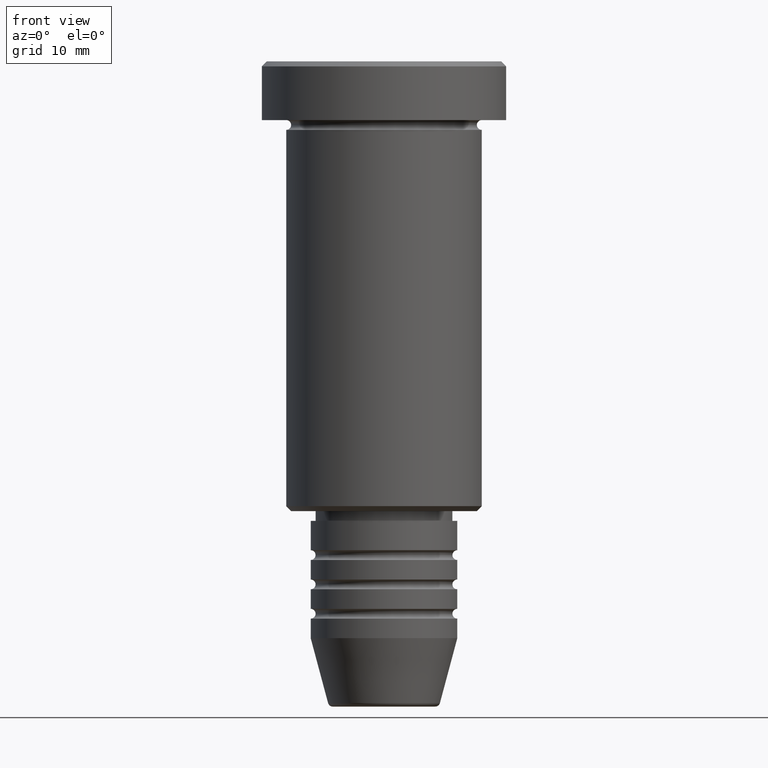
[diagram: clean part render]
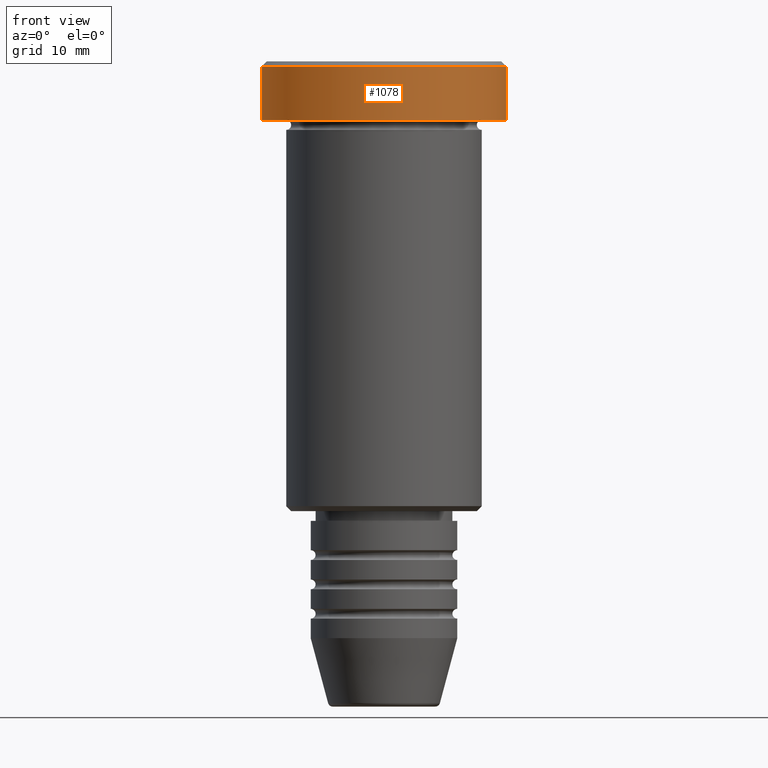
[diagram: same view with one face highlighted and labeled with its STEP entity id]
A machine part, front view. The second image highlights one B-rep face of the part: STEP entity #1078.
In plain terms, the highlighted cylindrical surface (partial cylindrical patch) has radius 12.5 mm, axis along (-0, -0, 1).
Its self-contained STEP definition (entity closure, byte-faithful):
#18 = EDGE_CURVE ( 'NONE', #989, #1174, #814, .T. ) ;
#20 = CARTESIAN_POINT ( 'NONE',  ( 0.000000000000000000, 0.000000000000000000, -0.4999999999999917843 ) ) ;
#25 = LINE ( 'NONE', #655, #605 ) ;
#63 = CIRCLE ( 'NONE', #537, 12.50000000000000000 ) ;
#107 = ORIENTED_EDGE ( 'NONE', *, *, #924, .T. ) ;
#119 = DIRECTION ( 'NONE',  ( -0.000000000000000000, -0.000000000000000000, 1.000000000000000000 ) ) ;
#147 = DIRECTION ( 'NONE',  ( -0.000000000000000000, -0.000000000000000000, 1.000000000000000000 ) ) ;
#151 = EDGE_CURVE ( 'NONE', #1100, #277, #25, .T. ) ;
#195 = DIRECTION ( 'NONE',  ( 1.000000000000000000, 0.000000000000000000, 0.000000000000000000 ) ) ;
#215 = CARTESIAN_POINT ( 'NONE',  ( -12.50000000000000000, 1.530808498934191521E-15, -0.4999999999999917843 ) ) ;
#272 = AXIS2_PLACEMENT_3D ( 'NONE', #782, #147, #312 ) ;
#277 = VERTEX_POINT ( 'NONE', #1048 ) ;
#312 = DIRECTION ( 'NONE',  ( 1.000000000000000000, 0.000000000000000000, 0.000000000000000000 ) ) ;
#374 = DIRECTION ( 'NONE',  ( 1.000000000000000000, 0.000000000000000000, 0.000000000000000000 ) ) ;
#377 = CIRCLE ( 'NONE', #272, 12.50000000000000000 ) ;
#415 = CARTESIAN_POINT ( 'NONE',  ( -12.50000000000000000, 1.530808498934191521E-15, -5.999999999999996447 ) ) ;
#462 = CARTESIAN_POINT ( 'NONE',  ( 12.50000000000000000, 0.000000000000000000, -5.999999999999996447 ) ) ;
#537 = AXIS2_PLACEMENT_3D ( 'NONE', #20, #758, #195 ) ;
#562 = ORIENTED_EDGE ( 'NONE', *, *, #1132, .T. ) ;
#567 = ORIENTED_EDGE ( 'NONE', *, *, #18, .F. ) ;
#605 = VECTOR ( 'NONE', #746, 1000.000000000000000 ) ;
#655 = CARTESIAN_POINT ( 'NONE',  ( 12.50000000000000000, 0.000000000000000000, 0.000000000000000000 ) ) ;
#738 = CYLINDRICAL_SURFACE ( 'NONE', #804, 12.50000000000000000 ) ;
#746 = DIRECTION ( 'NONE',  ( -0.000000000000000000, -0.000000000000000000, 1.000000000000000000 ) ) ;
#757 = VECTOR ( 'NONE', #1095, 1000.000000000000000 ) ;
#758 = DIRECTION ( 'NONE',  ( 0.000000000000000000, 0.000000000000000000, -1.000000000000000000 ) ) ;
#782 = CARTESIAN_POINT ( 'NONE',  ( 0.000000000000000000, 0.000000000000000000, -5.999999999999996447 ) ) ;
#804 = AXIS2_PLACEMENT_3D ( 'NONE', #832, #119, #374 ) ;
#814 = LINE ( 'NONE', #1007, #757 ) ;
#832 = CARTESIAN_POINT ( 'NONE',  ( 0.000000000000000000, 0.000000000000000000, 0.000000000000000000 ) ) ;
#857 = ORIENTED_EDGE ( 'NONE', *, *, #151, .T. ) ;
#924 = EDGE_CURVE ( 'NONE', #989, #1100, #377, .T. ) ;
#931 = FACE_OUTER_BOUND ( 'NONE', #1074, .T. ) ;
#989 = VERTEX_POINT ( 'NONE', #415 ) ;
#1007 = CARTESIAN_POINT ( 'NONE',  ( -12.50000000000000000, 1.530808498934191521E-15, 0.000000000000000000 ) ) ;
#1048 = CARTESIAN_POINT ( 'NONE',  ( 12.50000000000000000, 0.000000000000000000, -0.4999999999999917843 ) ) ;
#1074 = EDGE_LOOP ( 'NONE', ( #567, #107, #857, #562 ) ) ;
#1078 = ADVANCED_FACE ( 'NONE', ( #931 ), #738, .T. ) ;
#1095 = DIRECTION ( 'NONE',  ( -0.000000000000000000, -0.000000000000000000, 1.000000000000000000 ) ) ;
#1100 = VERTEX_POINT ( 'NONE', #462 ) ;
#1132 = EDGE_CURVE ( 'NONE', #277, #1174, #63, .T. ) ;
#1174 = VERTEX_POINT ( 'NONE', #215 ) ;